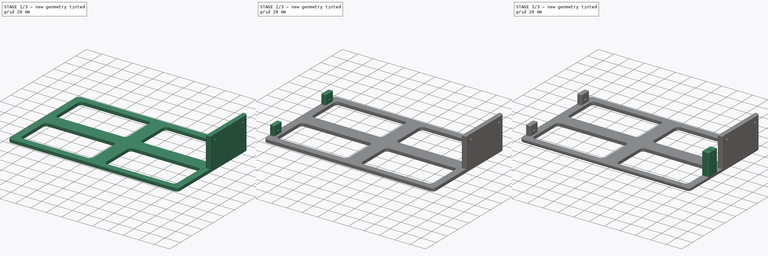
[diagram: build sequence overview — one tinted view per stage of 3, left to right]
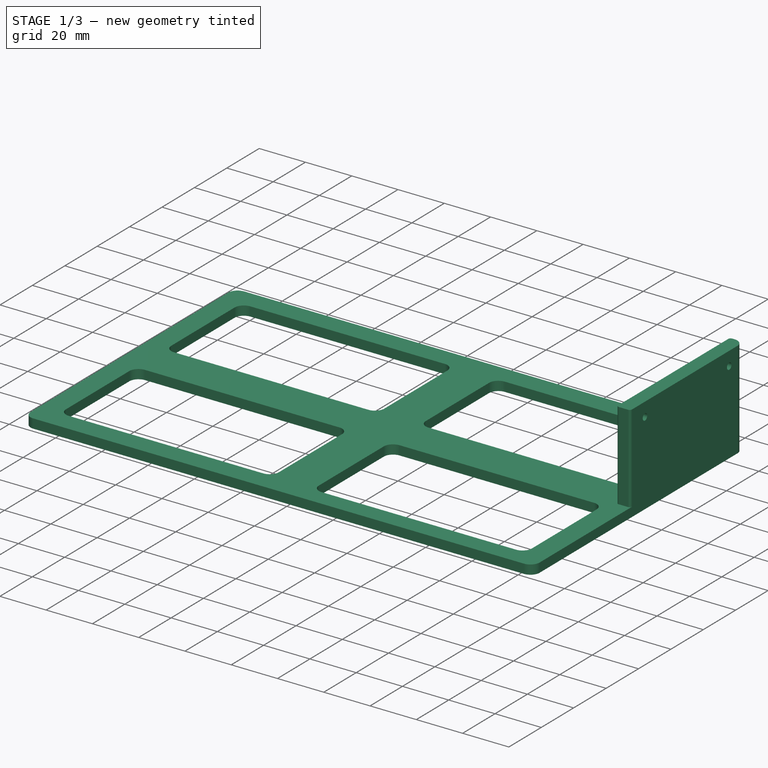
[diagram: stage 1 of 3 — iso view after this stage's code; geometry added in this stage tinted green]
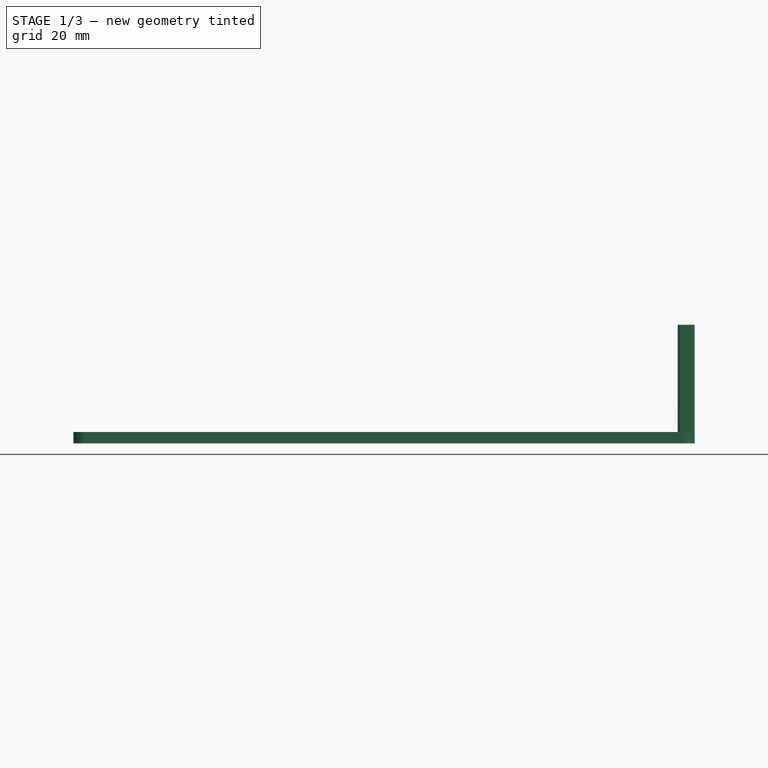
[diagram: stage 1 of 3 — front view after this stage's code; geometry added in this stage tinted green]
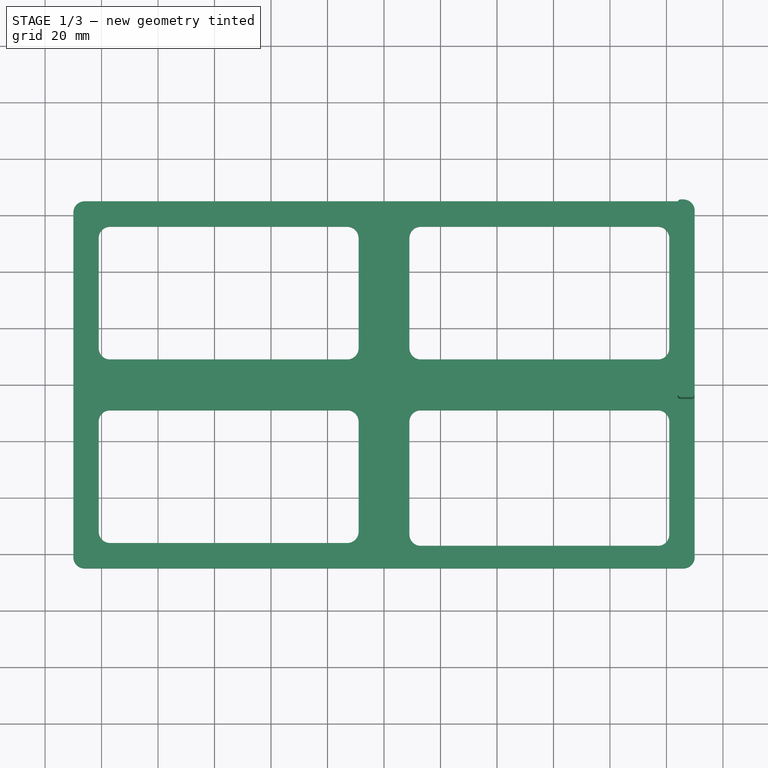
[diagram: stage 1 of 3 — top view after this stage's code; geometry added in this stage tinted green]
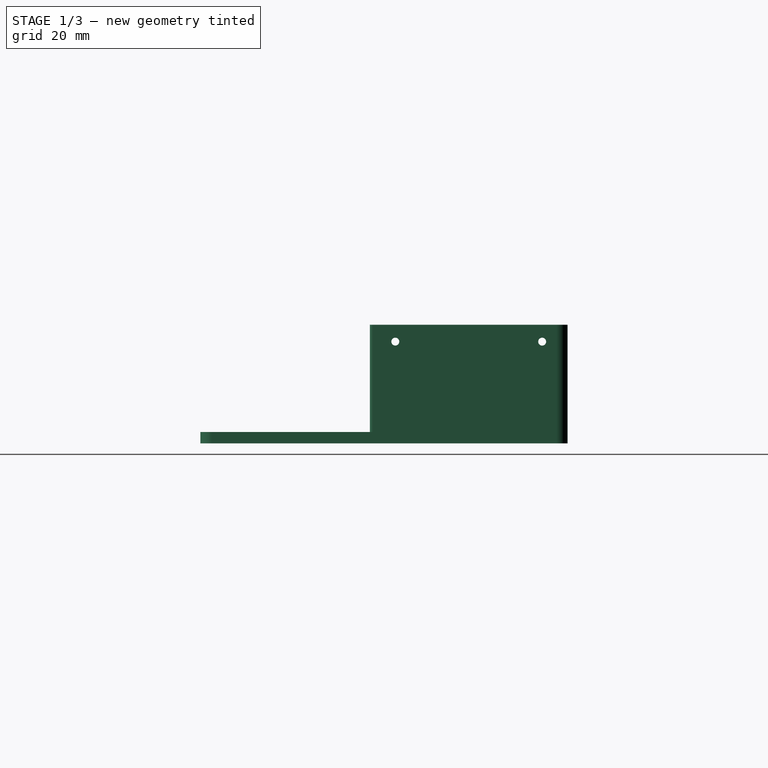
[diagram: stage 1 of 3 — right view after this stage's code; geometry added in this stage tinted green]
FCSTD DOCUMENT  (FreeCAD 0.21R33668 +7 (Git))
Label: headplate
License: All rights reserved
LicenseURL: http://en.wikipedia.org/wiki/All_rights_reserved
objects: Sketcher::SketchObject×7, PartDesign::Pad×4, PartDesign::Pocket×3, Spreadsheet::Sheet×1, PartDesign::Fillet×1, PartDesign::Body×1
note: 24 computed .brp shape members not serialized (recipe doc carries the construction recipe); baked Part::Feature solids carry a one-line shape summary decoded from their .brp

FEATURE [Sketcher::SketchObject] Sketch
  FullyConstrained = true
  MapMode = 5
  Support = -> [XY_Plane]
  expr: Constraints[100] = Spreadsheet.plateRimDistance
  expr: Constraints[101] = Spreadsheet.plateRimDistance
  expr: Constraints[102] = Spreadsheet.plateRimDistance
  expr: Constraints[103] = Spreadsheet.plateCutoutCorner
  expr: Constraints[104] = Spreadsheet.plateRimDistance
  expr: Constraints[105] = Spreadsheet.plateCutoutCorner
  expr: Constraints[106] = Spreadsheet.plateCutoutCorner
  expr: Constraints[107] = Spreadsheet.plateRimDistance
  expr: Constraints[108] = Spreadsheet.plateRimDistance
  expr: Constraints[109] = Spreadsheet.plateRimDistance
  expr: Constraints[110] = Spreadsheet.plateRimDistance
  expr: Constraints[111] = Spreadsheet.plateRimDistance
  expr: Constraints[112] = Spreadsheet.plateRimDistance
  expr: Constraints[113] = Spreadsheet.plateRimDistance
  expr: Constraints[114] = Spreadsheet.plateRimDistance
  expr: Constraints[12] = Spreadsheet.plateCorner
  expr: Constraints[13] = Spreadsheet.plateCorner
  expr: Constraints[14] = Spreadsheet.plateCorner
  expr: Constraints[15] = Spreadsheet.plateCorner
  expr: Constraints[38] = Spreadsheet.plateCutoutCorner
  expr: Constraints[39] = Spreadsheet.plateRimDistance
  expr: Constraints[98] = Spreadsheet.plateRimDistance
  expr: Constraints[99] = Spreadsheet.plateRimDistance
  sketch-geometry (48):
    g0: LineSegment StartX=-106 StartY=65 StartZ=0 EndX=106 EndY=65 EndZ=0
    g1: LineSegment StartX=110 StartY=61 StartZ=0 EndX=110 EndY=-61 EndZ=0
    g2: LineSegment StartX=106 StartY=-65 StartZ=0 EndX=-106 EndY=-65 EndZ=0
    g3: LineSegment StartX=-110 StartY=-61 StartZ=0 EndX=-110 EndY=61 EndZ=0
    g4: ArcOfCircle CenterX=-106 CenterY=61 CenterZ=0 NormalX=0 NormalY=0 NormalZ=1 AngleXU=0 Radius=4 StartAngle=1.5708 EndAngle=3.14159
    g5: ArcOfCircle CenterX=106 CenterY=61 CenterZ=0 NormalX=0 NormalY=0 NormalZ=1 AngleXU=0 Radius=4 StartAngle=1e-16 EndAngle=1.5708
    g6: ArcOfCircle CenterX=106 CenterY=-61 CenterZ=0 NormalX=0 NormalY=0 NormalZ=1 AngleXU=0 Radius=4 StartAngle=4.71239 EndAngle=6.28319
    g7: ArcOfCircle CenterX=-106 CenterY=-61 CenterZ=0 NormalX=0 NormalY=0 NormalZ=1 AngleXU=0 Radius=4 StartAngle=3.14159 EndAngle=4.71239
    g8: ArcOfCircle CenterX=13 CenterY=-13 CenterZ=0 NormalX=0 NormalY=0 NormalZ=1 AngleXU=0 Radius=4 StartAngle=1.5708 EndAngle=3.14159
    g9: LineSegment StartX=13 StartY=-9 StartZ=0 EndX=97 EndY=-9 EndZ=0
    g10: ArcOfCircle CenterX=97 CenterY=-13 CenterZ=0 NormalX=0 NormalY=0 NormalZ=1 AngleXU=0 Radius=4 StartAngle=0 EndAngle=1.5708
    g11: LineSegment StartX=101 StartY=-13 StartZ=0 EndX=101 EndY=-53 EndZ=0
    g12: ArcOfCircle CenterX=97 CenterY=-53 CenterZ=0 NormalX=0 NormalY=0 NormalZ=1 AngleXU=0 Radius=4 StartAngle=4.71239 EndAngle=6.28319
    g13: LineSegment StartX=97 StartY=-57 StartZ=0 EndX=13 EndY=-57 EndZ=0
    g14: ArcOfCircle CenterX=13 CenterY=-53 CenterZ=0 NormalX=0 NormalY=0 NormalZ=1 AngleXU=0 Radius=4 StartAngle=3.14159 EndAngle=4.71239
    g15: LineSegment StartX=9 StartY=-53 StartZ=0 EndX=9 EndY=-13 EndZ=0
    g16: GeomPoint X=9 Y=-9 Z=0
    g17: GeomPoint X=101 Y=-57 Z=0
    g18: ArcOfCircle CenterX=13 CenterY=52 CenterZ=0 NormalX=0 NormalY=0 NormalZ=1 AngleXU=0 Radius=4 StartAngle=1.5708 EndAngle=3.14159
    g19: LineSegment StartX=13 StartY=56 StartZ=0 EndX=97 EndY=56 EndZ=0
    g20: ArcOfCircle CenterX=97 CenterY=52 CenterZ=0 NormalX=0 NormalY=0 NormalZ=1 AngleXU=0 Radius=4 StartAngle=-9e-16 EndAngle=1.5708
    g21: LineSegment StartX=101 StartY=52 StartZ=0 EndX=101 EndY=13 EndZ=0
    g22: ArcOfCircle CenterX=97 CenterY=13 CenterZ=0 NormalX=0 NormalY=0 NormalZ=1 AngleXU=0 Radius=4 StartAngle=4.71239 EndAngle=6.28319
    g23: LineSegment StartX=97 StartY=9 StartZ=0 EndX=13 EndY=9 EndZ=0
    g24: ArcOfCircle CenterX=13 CenterY=13 CenterZ=0 NormalX=0 NormalY=0 NormalZ=1 AngleXU=0 Radius=4 StartAngle=3.14159 EndAngle=4.71239
    g25: LineSegment StartX=9 StartY=13 StartZ=0 EndX=9 EndY=52 EndZ=0
    g26: GeomPoint X=9 Y=56 Z=0
    g27: GeomPoint X=101 Y=9 Z=0
    g28: ArcOfCircle CenterX=-97 CenterY=52 CenterZ=0 NormalX=0 NormalY=0 NormalZ=1 AngleXU=0 Radius=4 StartAngle=1.5708 EndAngle=3.14159
    g29: LineSegment StartX=-97 StartY=56 StartZ=0 EndX=-13 EndY=56 EndZ=0
    g30: ArcOfCircle CenterX=-13 CenterY=52 CenterZ=0 NormalX=0 NormalY=0 NormalZ=1 AngleXU=0 Radius=4 StartAngle=0 EndAngle=1.5708
    g31: LineSegment StartX=-9 StartY=52 StartZ=0 EndX=-9 EndY=13 EndZ=0
    g32: ArcOfCircle CenterX=-13 CenterY=13 CenterZ=0 NormalX=0 NormalY=0 NormalZ=1 AngleXU=0 Radius=4 StartAngle=4.71239 EndAngle=6.28319
    g33: LineSegment StartX=-13 StartY=9 StartZ=0 EndX=-97 EndY=9 EndZ=0
    g34: ArcOfCircle CenterX=-97 CenterY=13 CenterZ=0 NormalX=0 NormalY=0 NormalZ=1 AngleXU=0 Radius=4 StartAngle=3.14159 EndAngle=4.71239
    g35: LineSegment StartX=-101 StartY=13 StartZ=0 EndX=-101 EndY=52 EndZ=0
    g36: GeomPoint X=-101 Y=56 Z=0
    g37: GeomPoint X=-9 Y=9 Z=0
    g38: ArcOfCircle CenterX=-97 CenterY=-13 CenterZ=0 NormalX=0 NormalY=0 NormalZ=1 AngleXU=0 Radius=4 StartAngle=1.5708 EndAngle=3.14159
    g39: LineSegment StartX=-97 StartY=-9 StartZ=0 EndX=-13 EndY=-9 EndZ=0
    g40: ArcOfCircle CenterX=-13 CenterY=-13 CenterZ=0 NormalX=0 NormalY=0 NormalZ=1 AngleXU=0 Radius=4 StartAngle=0 EndAngle=1.5708
    g41: LineSegment StartX=-9 StartY=-13 StartZ=0 EndX=-9 EndY=-52 EndZ=0
    g42: ArcOfCircle CenterX=-13 CenterY=-52 CenterZ=0 NormalX=0 NormalY=0 NormalZ=1 AngleXU=0 Radius=4 StartAngle=4.71239 EndAngle=6.28319
    g43: LineSegment StartX=-13 StartY=-56 StartZ=0 EndX=-97 EndY=-56 EndZ=0
    g44: ArcOfCircle CenterX=-97 CenterY=-52 CenterZ=0 NormalX=0 NormalY=0 NormalZ=1 AngleXU=0 Radius=4 StartAngle=3.14159 EndAngle=4.71239
    g45: LineSegment StartX=-101 StartY=-52 StartZ=0 EndX=-101 EndY=-13 EndZ=0
    g46: GeomPoint X=-101 Y=-9 Z=0
    g47: GeomPoint X=-9 Y=-56 Z=0
  constraints (115):
    c: Horizontal(g0)
    c: Horizontal(g2)
    c: Vertical(g1)
    c: Vertical(g3)
    c: Tangent(g0,g4) = 1.5708
    c: Tangent(g3,g4) = 1.5708
    c: Tangent(g0,g5) = 1.5708
    c: Tangent(g1,g5) = 1.5708
    c: Tangent(g1,g6) = 1.5708
    c: Tangent(g2,g6) = 1.5708
    c: Tangent(g2,g7) = 1.5708
    c: Tangent(g3,g7) = 1.5708
    c: DistanceX(g3,g4) = 4
    c: DistanceX(g3,g7) = 4
    c: DistanceX(g5,g1) = 4
    c: DistanceX(g6,g1) = 4
    c: DistanceY(g2,g0) = 130
    c: DistanceX(g3,g1) = 220
    c: Symmetric(g4,g6,g-1)
    c: Tangent(g8,g9) = 1.5708
    c: Tangent(g9,g10) = 1.5708
    c: Tangent(g10,g11) = 1.5708
    c: Tangent(g11,g12) = 1.5708
    c: Tangent(g12,g13) = 1.5708
    c: Tangent(g13,g14) = 1.5708
    c: Tangent(g14,g15) = 1.5708
    c: Tangent(g15,g8) = 1.5708
    c: Horizontal(g9)
    c: Horizontal(g13)
    c: Vertical(g11)
    c: Vertical(g15)
    c: Equal(g8,g10)
    c: Equal(g10,g12)
    c: Equal(g12,g14)
    c: PointOnObject(g16,g9)
    c: PointOnObject(g16,g15)
    c: PointOnObject(g17,g11)
    c: PointOnObject(g17,g13)
    c: DistanceY(g10,g9) = 4
    c: DistanceX(g11,g1) = 9
    c: DistanceY(g2,g12) = 8
    c: Tangent(g18,g19) = 1.5708
    c: Tangent(g19,g20) = 1.5708
    c: Tangent(g20,g21) = 1.5708
    c: Tangent(g21,g22) = 1.5708
    c: Tangent(g22,g23) = 1.5708
    c: Tangent(g23,g24) = 1.5708
    c: Tangent(g24,g25) = 1.5708
    c: Tangent(g25,g18) = 1.5708
    c: Horizontal(g19)
    c: Horizontal(g23)
    c: Vertical(g21)
    c: Vertical(g25)
    c: Equal(g18,g20)
    c: Equal(g20,g22)
    c: Equal(g22,g24)
    c: PointOnObject(g26,g19)
    c: PointOnObject(g26,g25)
    c: PointOnObject(g27,g21)
    c: PointOnObject(g27,g23)
    c: Tangent(g28,g29) = 1.5708
    c: Tangent(g29,g30) = 1.5708
    c: Tangent(g30,g31) = 1.5708
    c: Tangent(g31,g32) = 1.5708
    c: Tangent(g32,g33) = 1.5708
    c: Tangent(g33,g34) = 1.5708
    c: Tangent(g34,g35) = 1.5708
    c: Tangent(g35,g28) = 1.5708
    c: Horizontal(g29)
    c: Horizontal(g33)
    c: Vertical(g31)
    c: Vertical(g35)
    c: Equal(g28,g30)
    c: Equal(g30,g32)
    c: Equal(g32,g34)
    c: PointOnObject(g36,g29)
    c: PointOnObject(g36,g35)
    c: PointOnObject(g37,g31)
    c: PointOnObject(g37,g33)
    c: Tangent(g38,g39) = 1.5708
    c: Tangent(g39,g40) = 1.5708
    c: Tangent(g40,g41) = 1.5708
    c: Tangent(g41,g42) = 1.5708
    c: Tangent(g42,g43) = 1.5708
    c: Tangent(g43,g44) = 1.5708
    c: Tangent(g44,g45) = 1.5708
    c: Tangent(g45,g38) = 1.5708
    c: Horizontal(g39)
    c: Horizontal(g43)
    c: Vertical(g41)
    c: Vertical(g45)
    c: Equal(g38,g40)
    c: Equal(g40,g42)
    c: Equal(g42,g44)
    c: PointOnObject(g46,g39)
    c: PointOnObject(g46,g45)
    c: PointOnObject(g47,g41)
    c: PointOnObject(g47,g43)
    c: DistanceX(g-1,g14) = 9
    c: DistanceX(g40,g-1) = 9
    c: DistanceX(g3,g44) = 9
    c: DistanceY(g8,g-1) = 9
    c: DistanceY(g39,g-1) = 9
    c: DistanceY(g40,g39) = 4
    c: DistanceY(g2,g43) = 9
    c: DistanceX(g32,g31) = 4
    c: DistanceY(g18,g18) = 4
    c: DistanceY(g29,g0) = 9
    c: DistanceX(g3,g28) = 9
    c: DistanceX(g30,g-1) = 9
    c: DistanceY(g-1,g33) = 9
    c: DistanceY(g-1,g23) = 9
    c: DistanceY(g19,g0) = 9
    c: DistanceX(g-1,g24) = 9
    c: DistanceX(g20,g1) = 9
FEATURE [PartDesign::Pad] Pad
  Direction = (0,0,1)
  Length = 4
  Length2 = 10
  Profile = -> Sketch
  ReferenceAxis = -> Sketch [N_Axis]
  Type = 0
FEATURE [Spreadsheet::Sheet] Spreadsheet
  cells = A2='latteWidth; B2(latteWidth)=95; A3='latteHoleDia; B3(latteHoleDia)=2.8; A4='latteScrewDepth; B4(latteScrewDepth)=6; A5='latteScrewWidth; B5(latteScrewWidth)=14; A6='latteCorner; B6(latteCorner)=1; A7='psuWidth; B7(psuWidth)=52; A8='psuOuterWidth; B8(psuOuterWidth)=70; A9='psuScrewDepth; B9(psuScrewDepth)=4; A10='psuScrewWidth; B10(psuScrewWidth)=6; A11='psuScrewHeight; B11(psuScrewHeight)=6; A12='psuCorner; B12(psuCorner)=1; A13='gpuSide; B13(gpuSide)==B4 + 4; A14='gpuCutoutDist; B14(gpuCutoutDist)=5; A15='gpuScrewDia; B15(gpuScrewDia)=2.75; A16='plateCorner; B16(plateCorner)=4; A17='plateCutoutCorner; B17(plateCutoutCorner)=4; A18='plateRimDistance; B18(plateRimDistance)=9
FEATURE [Sketcher::SketchObject] Sketch006
  ExternalGeometry = -> [Pad]
  FullyConstrained = true
  MapMode = 5
  Placement = pos=(0,0,4) rot=(0,0,1;0rad)
  Support = -> [Pad]
  expr: Constraints[16] = Spreadsheet.psuCorner
  expr: Constraints[17] = Spreadsheet.psuCorner
  expr: Constraints[18] = Spreadsheet.psuOuterWidth
  expr: Constraints[19] = Spreadsheet.psuScrewWidth
  sketch-geometry (10):
    g0: ArcOfCircle CenterX=105 CenterY=64 CenterZ=0 NormalX=0 NormalY=0 NormalZ=1 AngleXU=0 Radius=1 StartAngle=1.5708 EndAngle=3.14159
    g1: LineSegment StartX=105 StartY=65 StartZ=0 EndX=106 EndY=65 EndZ=0
    g2: ArcOfCircle CenterX=106 CenterY=61 CenterZ=0 NormalX=0 NormalY=0 NormalZ=1 AngleXU=0 Radius=4 StartAngle=5e-16 EndAngle=1.5708
    g3: LineSegment StartX=110 StartY=61 StartZ=0 EndX=110 EndY=-4 EndZ=0
    g4: ArcOfCircle CenterX=109 CenterY=-4 CenterZ=0 NormalX=0 NormalY=0 NormalZ=1 AngleXU=0 Radius=1 StartAngle=4.71239 EndAngle=6.28319
    g5: LineSegment StartX=109 StartY=-5 StartZ=0 EndX=105 EndY=-5 EndZ=0
    g6: ArcOfCircle CenterX=105 CenterY=-4 CenterZ=0 NormalX=0 NormalY=0 NormalZ=1 AngleXU=0 Radius=1 StartAngle=3.14159 EndAngle=4.71239
    g7: LineSegment StartX=104 StartY=-4 StartZ=0 EndX=104 EndY=64 EndZ=0
    g8: GeomPoint X=104 Y=65 Z=0
    g9: GeomPoint X=110 Y=-5 Z=0
  constraints (23):
    c: Tangent(g1,g2) = 1.5708
    c: Tangent(g2,g3) = 1.5708
    c: Tangent(g3,g4) = 1.5708
    c: Tangent(g4,g5) = 1.5708
    c: Tangent(g5,g6) = 1.5708
    c: Tangent(g6,g7) = 1.5708
    c: Tangent(g7,g0) = 1.5708
    c: Horizontal(g5)
    c: Vertical(g3)
    c: Vertical(g7)
    c: PointOnObject(g8,g1)
    c: PointOnObject(g8,g7)
    c: PointOnObject(g9,g3)
    c: PointOnObject(g9,g5)
    c: Coincident(g2,g-3)
    c: Coincident(g1,g-3)
    c: DistanceX(g0,g0) = 1
    c: DistanceX(g6,g6) = 1
    c: DistanceY(g4,g1) = 70
    c: DistanceX(g0,g2) = 6
    c: Coincident(g0,g1)
    c: Vertical(g0,g0)
    c: Horizontal(g6,g4)
FEATURE [PartDesign::Pad] Pad001
  BaseFeature = -> Pad
  Direction = (0,0,1)
  Length = 38
  Length2 = 10
  Profile = -> Sketch006
  ReferenceAxis = -> Sketch006 [N_Axis]
  Type = 0
  expr: Length = Spreadsheet.psuScrewHeight + 32
FEATURE [Sketcher::SketchObject] Sketch007
  ExternalGeometry = -> [Pad001]
  FullyConstrained = true
  MapMode = 5
  Placement = pos=(110,0,0) rot=(0.57735,0.57735,0.57735;2.0944rad)
  Support = -> [Pad001]
  expr: Constraints[1] = 2.8
  expr: Constraints[3] = Spreadsheet.psuWidth
  sketch-geometry (2):
    g0: Circle CenterX=56 CenterY=36 CenterZ=0 NormalX=0 NormalY=0 NormalZ=1 AngleXU=0 Radius=1.4
    g1: Circle CenterX=4 CenterY=36 CenterZ=0 NormalX=0 NormalY=0 NormalZ=1 AngleXU=0 Radius=1.4
  constraints (6):
    c: Equal(g1,g0)
    c: Diameter(g1) = 2.8
    c: Horizontal(g1,g0)
    c: DistanceX(g1,g0) = 52
    c: DistanceY(g-4,g0) = 32
    c: DistanceX(g-3,g1) = 9
FEATURE [PartDesign::Pocket] Pocket
  BaseFeature = -> Pad001
  Direction = (-1,0,0)
  Length = 8
  Length2 = 5
  Profile = -> Sketch007
  ReferenceAxis = -> Sketch007 [N_Axis]
  Type = 0
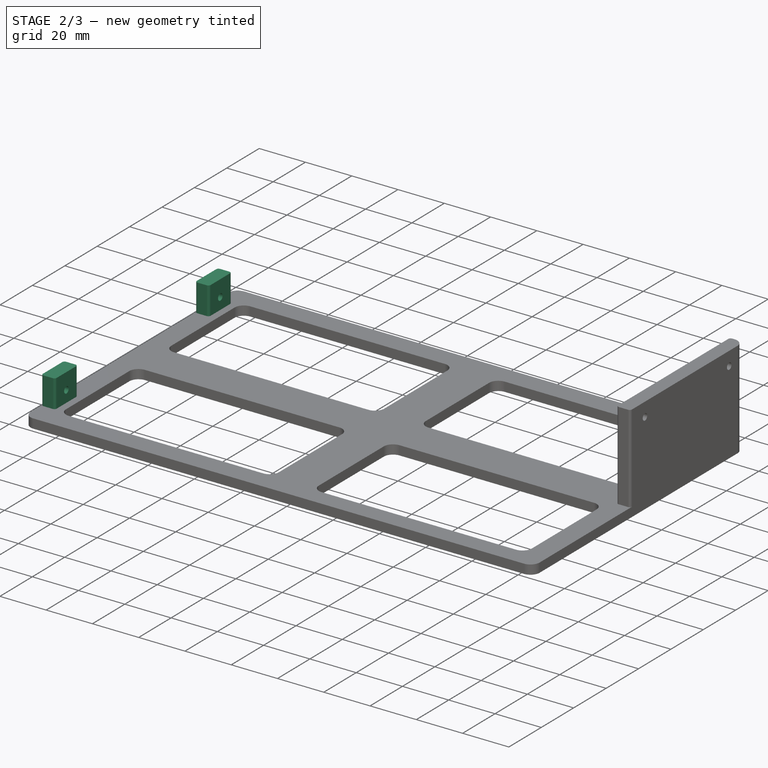
[diagram: stage 2 of 3 — iso view after this stage's code; geometry added in this stage tinted green]
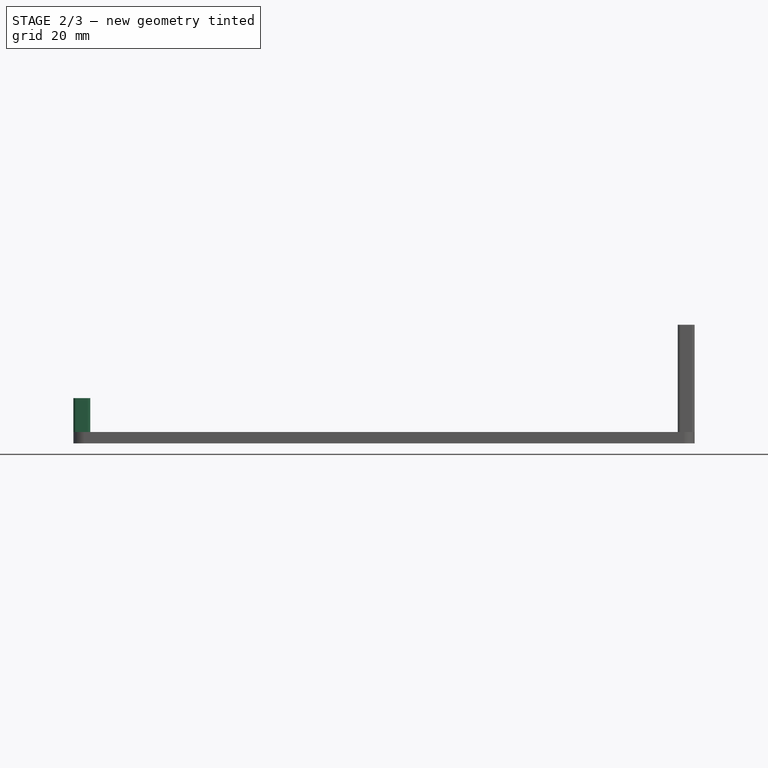
[diagram: stage 2 of 3 — front view after this stage's code; geometry added in this stage tinted green]
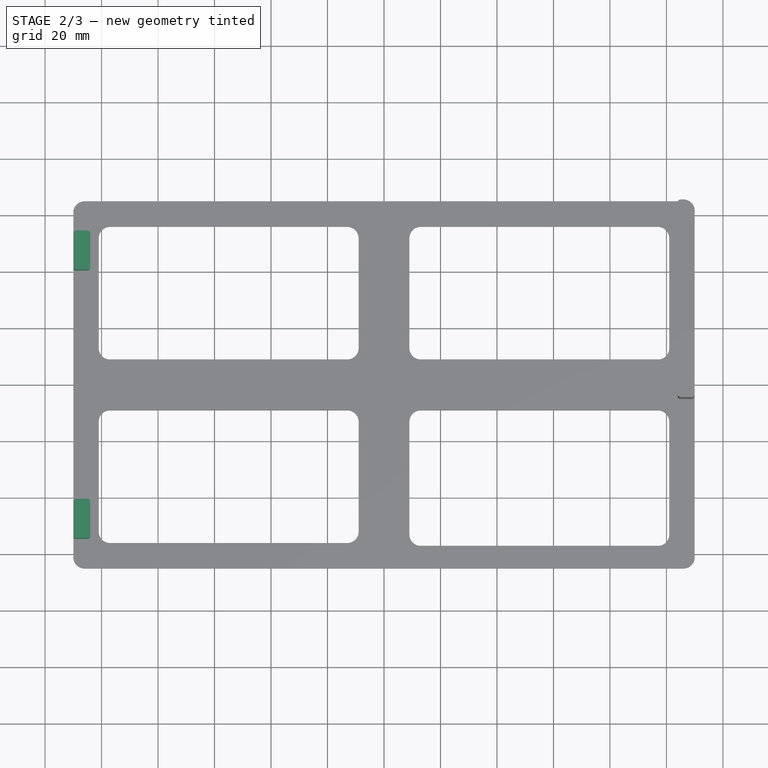
[diagram: stage 2 of 3 — top view after this stage's code; geometry added in this stage tinted green]
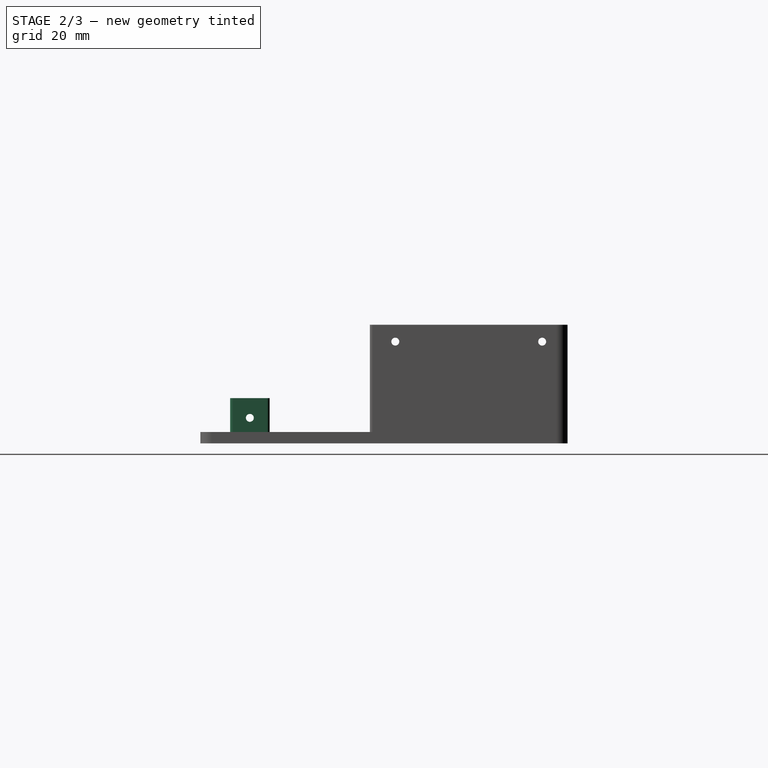
[diagram: stage 2 of 3 — right view after this stage's code; geometry added in this stage tinted green]
FEATURE [Sketcher::SketchObject] Sketch008
  ExternalGeometry = -> [Pocket]
  FullyConstrained = true
  MapMode = 5
  Placement = pos=(0,0,4) rot=(0,0,1;0rad)
  Support = -> [Pocket]
  expr: Constraints[38] = Spreadsheet.latteCorner
  expr: Constraints[39] = Spreadsheet.latteCorner
  expr: Constraints[40] = Spreadsheet.latteScrewDepth
  expr: Constraints[41] = Spreadsheet.latteScrewDepth
  expr: Constraints[42] = Spreadsheet.latteScrewWidth
  expr: Constraints[43] = Spreadsheet.latteScrewWidth
  expr: Constraints[44] = Spreadsheet.latteWidth
  sketch-geometry (20):
    g0: ArcOfCircle CenterX=-109 CenterY=53.5 CenterZ=0 NormalX=0 NormalY=0 NormalZ=1 AngleXU=0 Radius=1 StartAngle=1.5708 EndAngle=3.14159
    g1: LineSegment StartX=-109 StartY=54.5 StartZ=0 EndX=-105 EndY=54.5 EndZ=0
    g2: ArcOfCircle CenterX=-105 CenterY=53.5 CenterZ=0 NormalX=0 NormalY=0 NormalZ=1 AngleXU=0 Radius=1 StartAngle=-9e-16 EndAngle=1.5708
    g3: LineSegment StartX=-104 StartY=53.5 StartZ=0 EndX=-104 EndY=41.5 EndZ=0
    g4: ArcOfCircle CenterX=-105 CenterY=41.5 CenterZ=0 NormalX=0 NormalY=0 NormalZ=1 AngleXU=0 Radius=1 StartAngle=4.71239 EndAngle=6.28319
    g5: LineSegment StartX=-105 StartY=40.5 StartZ=0 EndX=-109 EndY=40.5 EndZ=0
    g6: ArcOfCircle CenterX=-109 CenterY=41.5 CenterZ=0 NormalX=0 NormalY=0 NormalZ=1 AngleXU=0 Radius=1 StartAngle=3.14159 EndAngle=4.71239
    g7: LineSegment StartX=-110 StartY=41.5 StartZ=0 EndX=-110 EndY=53.5 EndZ=0
    g8: GeomPoint X=-110 Y=54.5 Z=0
    g9: GeomPoint X=-104 Y=40.5 Z=0
    g10: ArcOfCircle CenterX=-109 CenterY=-41.5 CenterZ=0 NormalX=0 NormalY=0 NormalZ=1 AngleXU=0 Radius=1 StartAngle=1.5708 EndAngle=3.14159
    g11: LineSegment StartX=-109 StartY=-40.5 StartZ=0 EndX=-105 EndY=-40.5 EndZ=0
    g12: ArcOfCircle CenterX=-105 CenterY=-41.5 CenterZ=0 NormalX=0 NormalY=0 NormalZ=1 AngleXU=0 Radius=1 StartAngle=1.3e-15 EndAngle=1.5708
    g13: LineSegment StartX=-104 StartY=-41.5 StartZ=0 EndX=-104 EndY=-53.5 EndZ=0
    g14: ArcOfCircle CenterX=-105 CenterY=-53.5 CenterZ=0 NormalX=0 NormalY=0 NormalZ=1 AngleXU=0 Radius=1 StartAngle=4.71239 EndAngle=6.28319
    g15: LineSegment StartX=-105 StartY=-54.5 StartZ=0 EndX=-109 EndY=-54.5 EndZ=0
    g16: ArcOfCircle CenterX=-109 CenterY=-53.5 CenterZ=0 NormalX=0 NormalY=0 NormalZ=1 AngleXU=0 Radius=1 StartAngle=3.14159 EndAngle=4.71239
    g17: LineSegment StartX=-110 StartY=-53.5 StartZ=0 EndX=-110 EndY=-41.5 EndZ=0
    g18: GeomPoint X=-110 Y=-40.5 Z=0
    g19: GeomPoint X=-104 Y=-54.5 Z=0
  constraints (47):
    c: Tangent(g0,g1) = 1.5708
    c: Tangent(g1,g2) = 1.5708
    c: Tangent(g2,g3) = 1.5708
    c: Tangent(g3,g4) = 1.5708
    c: Tangent(g4,g5) = 1.5708
    c: Tangent(g5,g6) = 1.5708
    c: Tangent(g6,g7) = 1.5708
    c: Tangent(g7,g0) = 1.5708
    c: Horizontal(g1)
    c: Horizontal(g5)
    c: Vertical(g3)
    c: Vertical(g7)
    c: Equal(g0,g2)
    c: Equal(g2,g4)
    c: Equal(g4,g6)
    c: PointOnObject(g8,g1)
    c: PointOnObject(g8,g7)
    c: PointOnObject(g9,g3)
    c: PointOnObject(g9,g5)
    c: Tangent(g10,g11) = 1.5708
    c: Tangent(g11,g12) = 1.5708
    c: Tangent(g12,g13) = 1.5708
    c: Tangent(g13,g14) = 1.5708
    c: Tangent(g14,g15) = 1.5708
    c: Tangent(g15,g16) = 1.5708
    c: Tangent(g16,g17) = 1.5708
    c: Tangent(g17,g10) = 1.5708
    c: Horizontal(g11)
    c: Horizontal(g15)
    c: Vertical(g13)
    c: Vertical(g17)
    c: Equal(g10,g12)
    c: Equal(g12,g14)
    c: Equal(g14,g16)
    c: PointOnObject(g18,g11)
    c: PointOnObject(g18,g17)
    c: PointOnObject(g19,g13)
    c: PointOnObject(g19,g15)
    c: DistanceX(g2,g2) = 1
    c: DistanceX(g12,g12) = 1
    c: DistanceX(g10,g12) = 6
    c: DistanceX(g6,g3) = 6
    c: DistanceY(g4,g1) = 14
    c: DistanceY(g15,g10) = 14
    c: DistanceY(g15,g5) = 95
    c: Symmetric(g5,g10,g-1)
    c: Vertical(g6,g-3)
FEATURE [PartDesign::Pad] Pad002
  BaseFeature = -> Pocket
  Direction = (0,0,1)
  Length = 12
  Length2 = 10
  Profile = -> Sketch008
  ReferenceAxis = -> Sketch008 [N_Axis]
  Type = 0
FEATURE [Sketcher::SketchObject] Sketch009
  ExternalGeometry = -> [Pad002]
  FullyConstrained = true
  MapMode = 5
  Placement = pos=(-110,0,0) rot=(0.57735,-0.57735,-0.57735;2.0944rad)
  Support = -> [Pad002]
  expr: Constraints[3] = Spreadsheet.latteWidth
  expr: Constraints[4] = 5
  expr: Constraints[5] = Spreadsheet.latteScrewWidth / 2
  sketch-geometry (2):
    g0: Circle CenterX=-47.5 CenterY=9 CenterZ=0 NormalX=0 NormalY=0 NormalZ=1 AngleXU=0 Radius=1.4
    g1: Circle CenterX=47.5 CenterY=9 CenterZ=0 NormalX=0 NormalY=0 NormalZ=1 AngleXU=0 Radius=1.4
  constraints (6):
    c: Equal(g1,g0)
    c: Diameter(g1) = 2.8
    c: Horizontal(g0,g1)
    c: DistanceX(g0,g1) = 95
    c: DistanceY(g-4,g0) = 5
    c: DistanceX(g0,g-5) = 7
FEATURE [PartDesign::Pocket] Pocket001
  BaseFeature = -> Pad002
  Direction = (1,0,0)
  Length = 8
  Length2 = 5
  Profile = -> Sketch009
  ReferenceAxis = -> Sketch009 [N_Axis]
  Type = 0
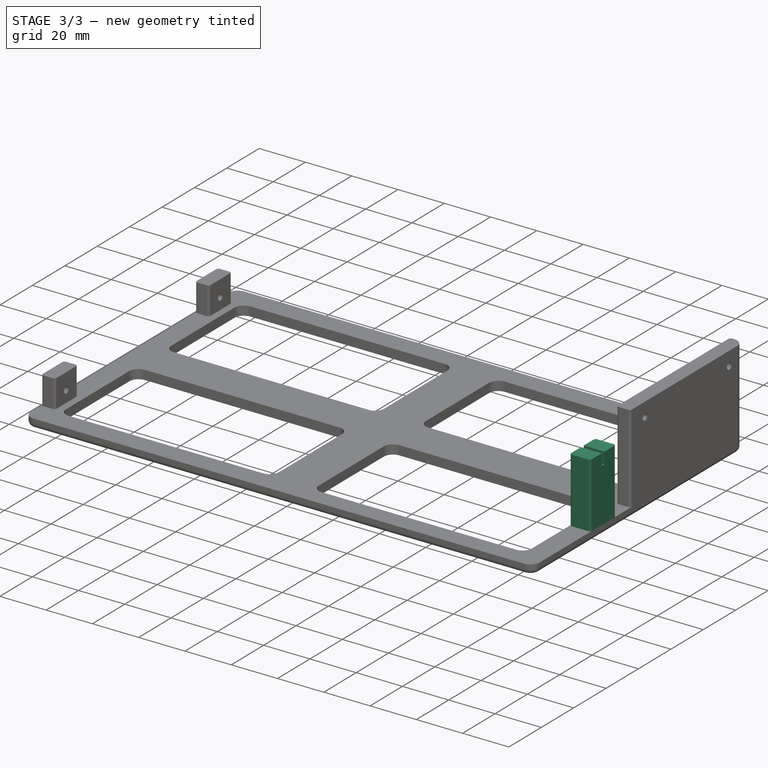
[diagram: stage 3 of 3 — iso view after this stage's code; geometry added in this stage tinted green]
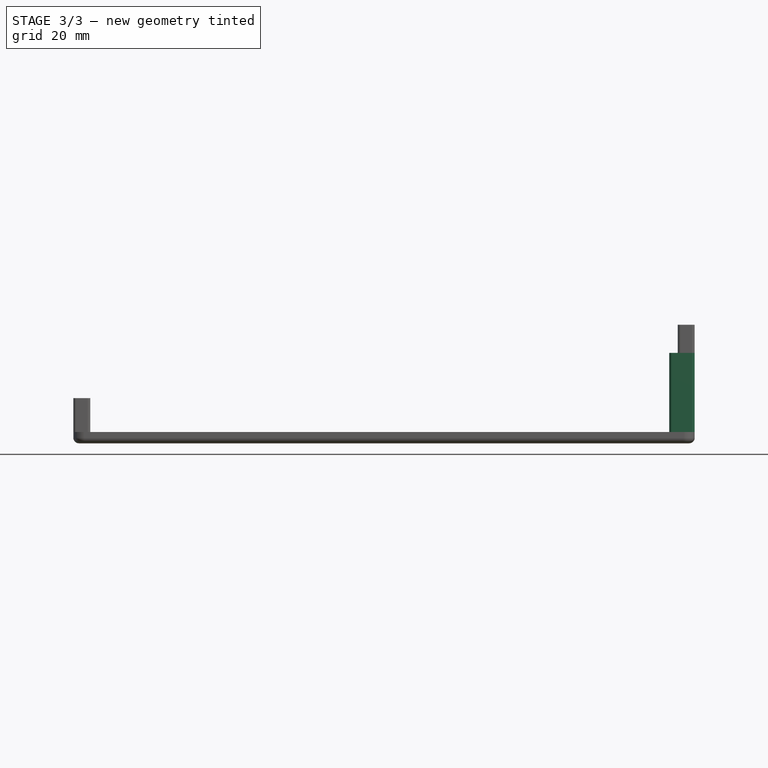
[diagram: stage 3 of 3 — front view after this stage's code; geometry added in this stage tinted green]
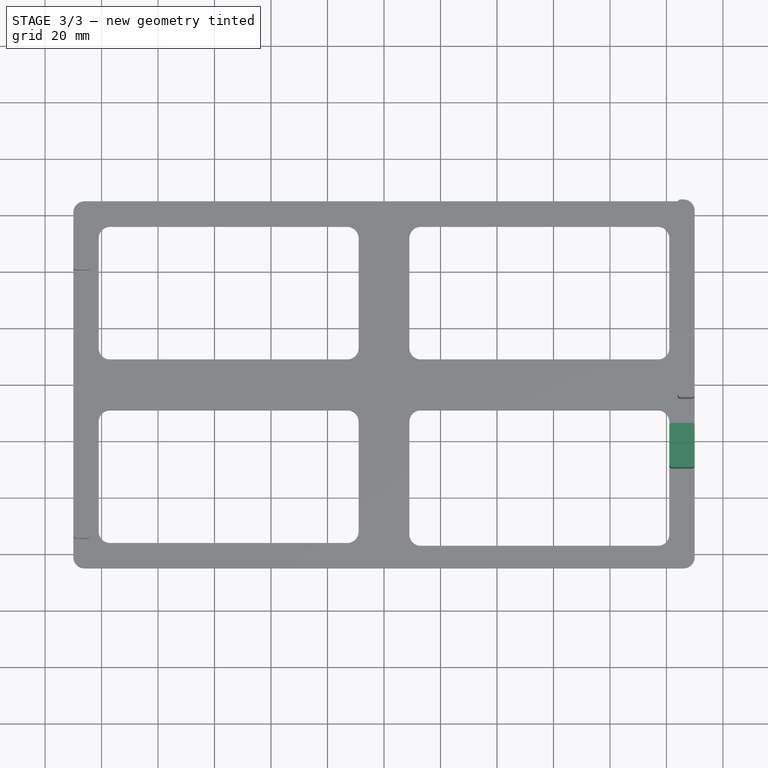
[diagram: stage 3 of 3 — top view after this stage's code; geometry added in this stage tinted green]
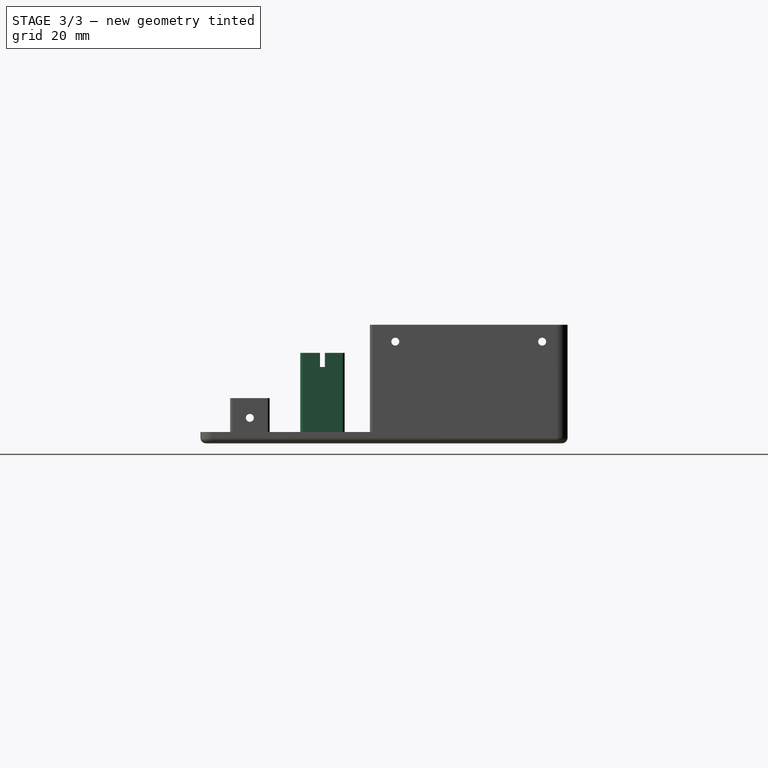
[diagram: stage 3 of 3 — right view after this stage's code; geometry added in this stage tinted green]
FEATURE [Sketcher::SketchObject] Sketch010
  ExternalGeometry = -> [Pocket001]
  FullyConstrained = true
  MapMode = 5
  Placement = pos=(0,0,4) rot=(0,0,1;0rad)
  Support = -> [Pocket001]
  sketch-geometry (11):
    g0: ArcOfCircle CenterX=102 CenterY=-14.95 CenterZ=0 NormalX=0 NormalY=0 NormalZ=1 AngleXU=0 Radius=1 StartAngle=1.5708 EndAngle=3.14159
    g1: LineSegment StartX=102 StartY=-13.95 StartZ=0 EndX=109 EndY=-13.95 EndZ=0
    g2: ArcOfCircle CenterX=109 CenterY=-14.95 CenterZ=0 NormalX=0 NormalY=0 NormalZ=1 AngleXU=0 Radius=1 StartAngle=0 EndAngle=1.5708
    g3: LineSegment StartX=110 StartY=-14.95 StartZ=0 EndX=110 EndY=-28.65 EndZ=0
    g4: ArcOfCircle CenterX=109 CenterY=-28.65 CenterZ=0 NormalX=0 NormalY=0 NormalZ=1 AngleXU=0 Radius=1 StartAngle=4.71239 EndAngle=6.28319
    g5: LineSegment StartX=109 StartY=-29.65 StartZ=0 EndX=102 EndY=-29.65 EndZ=0
    g6: ArcOfCircle CenterX=102 CenterY=-28.65 CenterZ=0 NormalX=0 NormalY=0 NormalZ=1 AngleXU=0 Radius=1 StartAngle=3.14159 EndAngle=4.71239
    g7: LineSegment StartX=101 StartY=-28.65 StartZ=0 EndX=101 EndY=-14.95 EndZ=0
    g8: GeomPoint X=101 Y=-13.95 Z=0
    g9: GeomPoint X=110 Y=-29.65 Z=0
    g10: GeomPoint X=105.5 Y=-21.8 Z=0
  constraints (25):
    c: Tangent(g0,g1) = 1.5708
    c: Tangent(g1,g2) = 1.5708
    c: Tangent(g2,g3) = 1.5708
    c: Tangent(g3,g4) = 1.5708
    c: Tangent(g4,g5) = 1.5708
    c: Tangent(g5,g6) = 1.5708
    c: Tangent(g6,g7) = 1.5708
    c: Tangent(g7,g0) = 1.5708
    c: Horizontal(g1)
    c: Horizontal(g5)
    c: Vertical(g3)
    c: Vertical(g7)
    c: Equal(g0,g2)
    c: Equal(g2,g4)
    c: Equal(g4,g6)
    c: PointOnObject(g8,g1)
    c: PointOnObject(g8,g7)
    c: PointOnObject(g9,g3)
    c: PointOnObject(g9,g5)
    c: Vertical(g6,g-4)
    c: Vertical(g3,g-3)
    c: DistanceX(g2,g2) = 1
    c: DistanceY(g4,g1) = 15.7
    c: Symmetric(g0,g4,g10)
    c: DistanceY(g-3,g10) = 43.2
FEATURE [PartDesign::Pad] Pad003
  BaseFeature = -> Pocket001
  Direction = (0,0,1)
  Length = 28
  Length2 = 10
  Profile = -> Sketch010
  ReferenceAxis = -> Sketch010 [N_Axis]
  Type = 0
FEATURE [Sketcher::SketchObject] Sketch011
  ExternalGeometry = -> [Pad003]
  FullyConstrained = true
  MapMode = 5
  Placement = pos=(0,0,32) rot=(0,0,1;0rad)
  Support = -> [Pad003]
  sketch-geometry (5):
    g0: LineSegment StartX=101 StartY=-20.95 StartZ=0 EndX=110 EndY=-20.95 EndZ=0
    g1: LineSegment StartX=110 StartY=-20.95 StartZ=0 EndX=110 EndY=-22.65 EndZ=0
    g2: LineSegment StartX=110 StartY=-22.65 StartZ=0 EndX=101 EndY=-22.65 EndZ=0
    g3: LineSegment StartX=101 StartY=-22.65 StartZ=0 EndX=101 EndY=-20.95 EndZ=0
    g4: GeomPoint X=105.5 Y=-21.8 Z=0
  constraints (12):
    c: Coincident(g0,g1)
    c: Coincident(g1,g2)
    c: Coincident(g2,g3)
    c: Coincident(g3,g0)
    c: Horizontal(g0)
    c: Horizontal(g2)
    c: Vertical(g1)
    c: Vertical(g3)
    c: Vertical(g0,g-5)
    c: Symmetric(g2,g0,g4)
    c: Symmetric(g-5,g-7,g4)
    c: DistanceY(g1,g0) = 1.7
FEATURE [PartDesign::Pocket] Pocket002
  BaseFeature = -> Pad003
  Direction = (0,0,-1)
  Length = 5
  Length2 = 5
  Profile = -> Sketch011
  ReferenceAxis = -> Sketch011 [N_Axis]
  Type = 0
FEATURE [PartDesign::Fillet] Fillet
  Base = -> Pocket002 [Edge15]
  BaseFeature = -> Pocket002
  Radius = 2
  SupportTransform = false
  UseAllEdges = false
FEATURE [PartDesign::Body] Body
  Group = -> [Sketch,Pad,Sketch006,Pad001,Sketch007,Pocket,Sketch008,Pad002,Sketch009,Pocket001,Sketch010,Pad003,Sketch011,Pocket002,Fillet]
  Origin = -> Origin
  Tip = -> Fillet
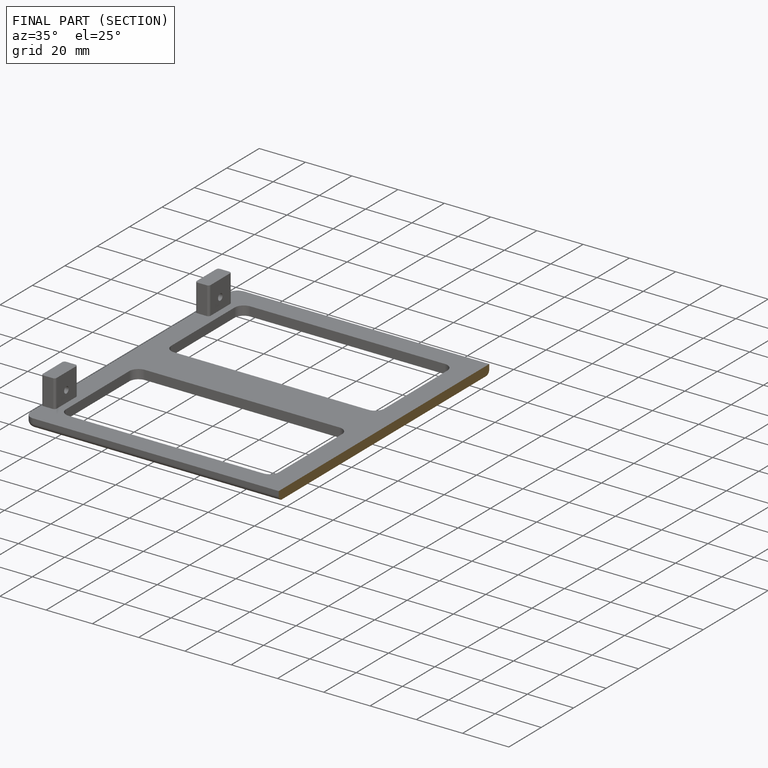
[diagram: finished part — half-section view (interior)]
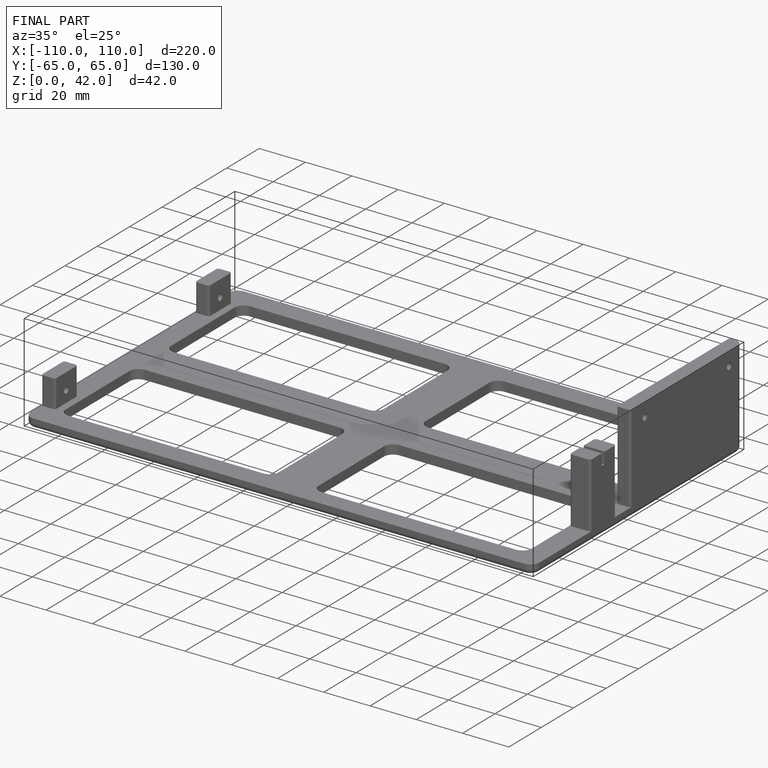
[diagram: finished part — iso view with bounding-box wireframe]
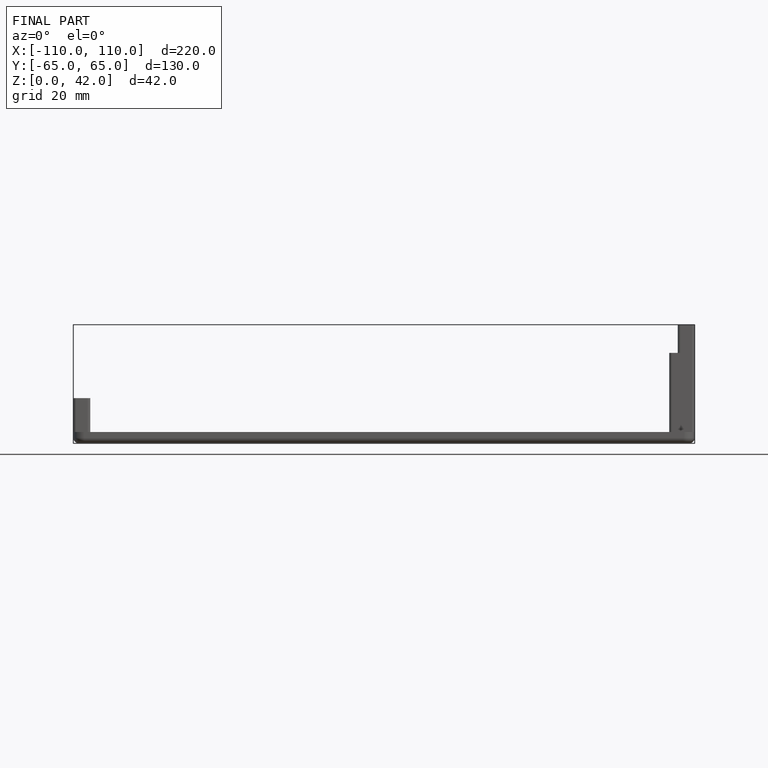
[diagram: finished part — front view with bounding-box wireframe]
